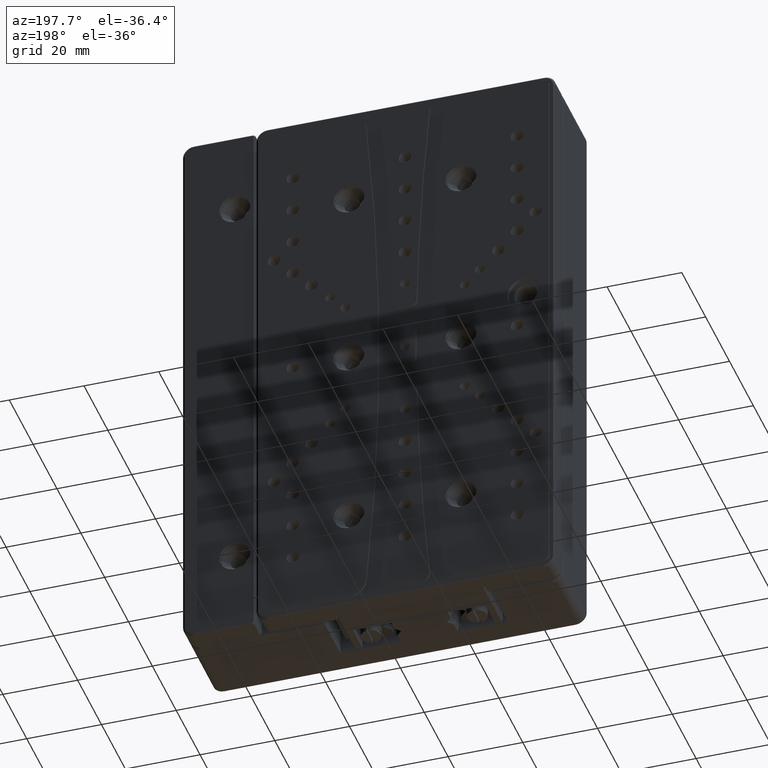
[diagram: clean part render]
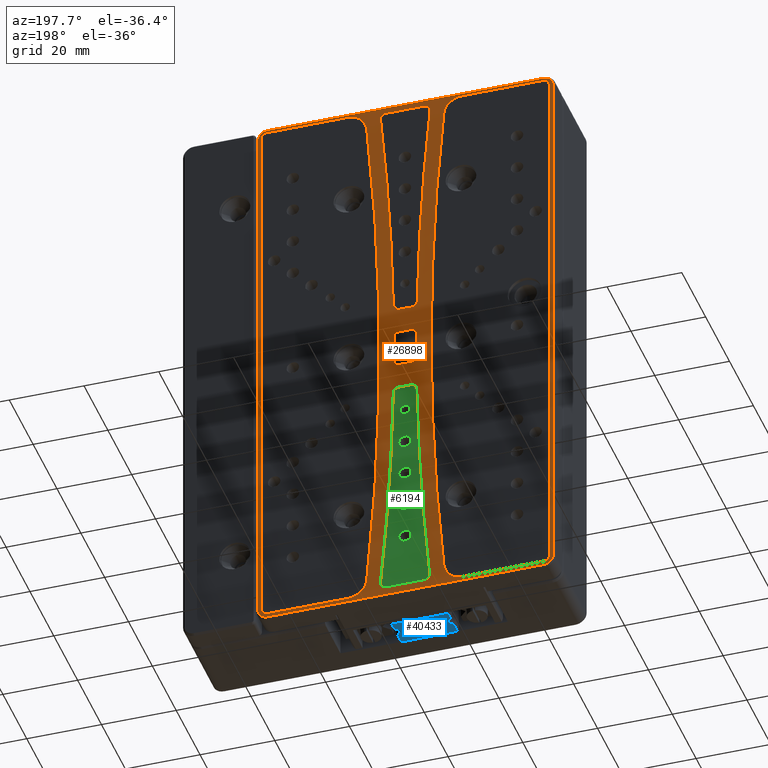
[diagram: same view with three faces highlighted in distinct colors, each labeled with its STEP entity id]
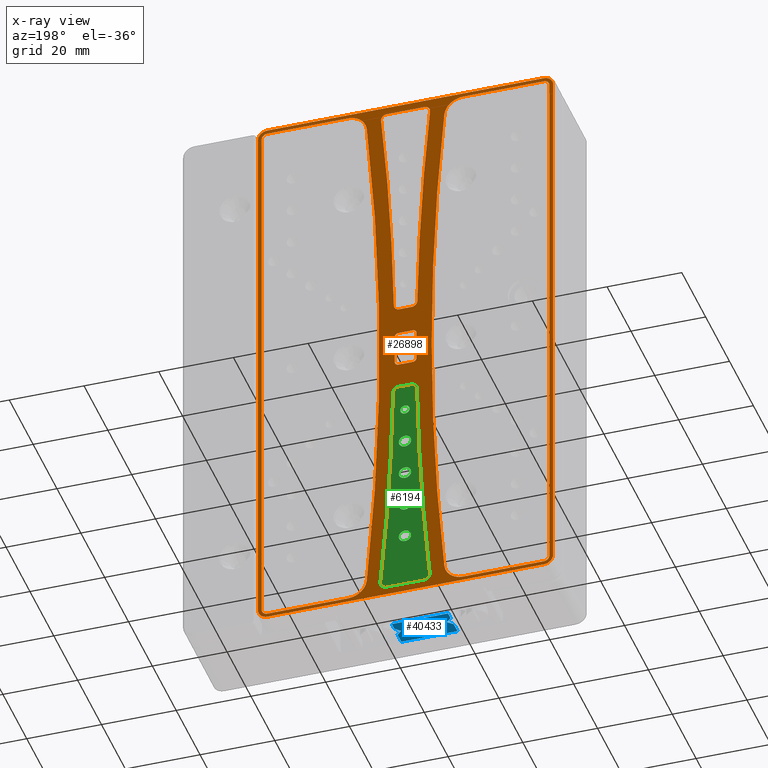
[diagram: x-ray of the same camera — body ghosted, the three highlighted faces saturated]
A machine part, auxiliary view with three faces highlighted in distinct colors.
The next image is the same camera in x-ray (body ghosted, the three faces saturated) — at least one of them is partly hidden behind the body in this view.
Their STEP definitions:

[orange] entity #26898 — the highlighted planar face has unit normal (-0, 1, 0).
#69 = VERTEX_POINT ( 'NONE', #3972 ) ;
#116 = DIRECTION ( 'NONE',  ( 0.000000000000000000, 0.000000000000000000, -1.000000000000000000 ) ) ;
#212 = EDGE_CURVE ( 'NONE', #866, #10616, #19604, .T. ) ;
#351 = DIRECTION ( 'NONE',  ( 0.9998309858899953051, 0.000000000000000000, -0.01838476690741990688 ) ) ;
#396 = CARTESIAN_POINT ( 'NONE',  ( 26.99999999999999645, 7.000000000001000089, 74.50000000000000000 ) ) ;
#564 = CARTESIAN_POINT ( 'NONE',  ( 27.00000000772999442, 7.000000004318000180, 76.99999999568001385 ) ) ;
#637 = ORIENTED_EDGE ( 'NONE', *, *, #14085, .T. ) ;
#648 = VERTEX_POINT ( 'NONE', #26234 ) ;
#674 = CARTESIAN_POINT ( 'NONE',  ( -8.371295755230999447, 7.000000000001000089, 14.00000000000000000 ) ) ;
#866 = VERTEX_POINT ( 'NONE', #44596 ) ;
#895 = CARTESIAN_POINT ( 'NONE',  ( -17.00000000000001421, 7.000000000001000089, 0.000000000000000000 ) ) ;
#965 = CARTESIAN_POINT ( 'NONE',  ( -11.62870424476900055, 7.000000000001000089, -14.00000000000000000 ) ) ;
#1002 = DIRECTION ( 'NONE',  ( 1.000000000000000000, 0.000000000000000000, 0.000000000000000000 ) ) ;
#1052 = DIRECTION ( 'NONE',  ( 1.000000000000000000, 0.000000000000000000, 0.000000000000000000 ) ) ;
#1258 = DIRECTION ( 'NONE',  ( 0.000000000000000000, 0.000000000000000000, 1.000000000000000000 ) ) ;
#1317 = DIRECTION ( 'NONE',  ( -0.000000000000000000, 1.000000000000000000, 0.000000000000000000 ) ) ;
#1392 = DIRECTION ( 'NONE',  ( -0.9953310426837929104, 0.000000000000000000, -0.09652002626394928786 ) ) ;
#1451 = VERTEX_POINT ( 'NONE', #19209 ) ;
#1853 = EDGE_CURVE ( 'NONE', #4032, #4989, #39225, .T. ) ;
#1898 = CARTESIAN_POINT ( 'NONE',  ( -3.451592439681999913, 7.000000000001000089, -73.35521996059999594 ) ) ;
#1922 = LINE ( 'NONE', #27201, #11290 ) ;
#2001 = PLANE ( 'NONE',  #34400 ) ;
#2118 = CARTESIAN_POINT ( 'NONE',  ( -11.62870424476900055, 7.000000000001000089, 12.50000000000000000 ) ) ;
#2132 = EDGE_CURVE ( 'NONE', #25338, #19690, #29527, .T. ) ;
#2137 = CARTESIAN_POINT ( 'NONE',  ( -11.90000000000000036, 7.000000000001000089, 5.000000000000000000 ) ) ;
#2184 = EDGE_CURVE ( 'NONE', #69, #32257, #8926, .T. ) ;
#2290 = ORIENTED_EDGE ( 'NONE', *, *, #17021, .T. ) ;
#2367 = CIRCLE ( 'NONE', #4556, 5.000000000000004441 ) ;
#2418 = CARTESIAN_POINT ( 'NONE',  ( -11.90000000000000036, 7.000000000001000089, -4.000000000000000000 ) ) ;
#2472 = AXIS2_PLACEMENT_3D ( 'NONE', #396, #7506, #17861 ) ;
#2606 = DIRECTION ( 'NONE',  ( 0.9955210055970532546, 0.000000000000000000, 0.09454061251669421129 ) ) ;
#2608 = DIRECTION ( 'NONE',  ( -0.9955210055970588057, 0.000000000000000000, 0.09454061251663607723 ) ) ;
#2639 = LINE ( 'NONE', #13441, #17869 ) ;
#2706 = ORIENTED_EDGE ( 'NONE', *, *, #38000, .T. ) ;
#2810 = CIRCLE ( 'NONE', #29988, 5.000000000000004441 ) ;
#2819 = DIRECTION ( 'NONE',  ( 0.000000000000000000, -1.000000000000000000, 0.000000000000000000 ) ) ;
#2853 = DIRECTION ( 'NONE',  ( -1.000000000000000000, 0.000000000000000000, 0.000000000000000000 ) ) ;
#3025 = CARTESIAN_POINT ( 'NONE',  ( 29.50000000000000000, 7.000000000001000089, -74.50000000000000000 ) ) ;
#3042 = DIRECTION ( 'NONE',  ( 0.000000000000000000, 0.000000000000000000, 1.000000000000000000 ) ) ;
#3064 = EDGE_LOOP ( 'NONE', ( #26033, #11302, #40207, #25550, #7748, #21269, #2290, #33405 ) ) ;
#3067 = EDGE_CURVE ( 'NONE', #12588, #866, #9101, .T. ) ;
#3091 = ORIENTED_EDGE ( 'NONE', *, *, #38563, .T. ) ;
#3189 = CIRCLE ( 'NONE', #2472, 2.499999999999998668 ) ;
#3273 = CARTESIAN_POINT ( 'NONE',  ( -16.54840756031800098, 7.000000000001000089, -73.35521996059999594 ) ) ;
#3324 = CARTESIAN_POINT ( 'NONE',  ( -49.50000000000000000, 7.000000000001000089, 74.50000000000000000 ) ) ;
#3391 = DIRECTION ( 'NONE',  ( 0.000000000000000000, 0.000000000000000000, -1.000000000000000000 ) ) ;
#3462 = CARTESIAN_POINT ( 'NONE',  ( 753.0000000000000000, 7.000000000001000089, 0.000000000000000000 ) ) ;
#3578 = DIRECTION ( 'NONE',  ( -1.000000000000000000, 0.000000000000000000, 0.000000000000000000 ) ) ;
#3703 = VECTOR ( 'NONE', #14578, 1000.000000000000000 ) ;
#3926 = DIRECTION ( 'NONE',  ( 0.000000000000000000, 0.000000000000000000, 1.000000000000000000 ) ) ;
#3972 = CARTESIAN_POINT ( 'NONE',  ( -48.50000000000000000, 7.000000000001000089, -74.50000000000000000 ) ) ;
#4014 = CARTESIAN_POINT ( 'NONE',  ( -773.0000000000000000, 7.000000000001000089, 0.000000000000000000 ) ) ;
#4032 = VERTEX_POINT ( 'NONE', #45245 ) ;
#4118 = AXIS2_PLACEMENT_3D ( 'NONE', #16826, #6246, #44667 ) ;
#4290 = CARTESIAN_POINT ( 'NONE',  ( -47.00000000772999442, 7.000000004318000180, 76.99999999568001385 ) ) ;
#4327 = CARTESIAN_POINT ( 'NONE',  ( 26.99999999999999645, 7.000000000001000089, 76.00000000000000000 ) ) ;
#4342 = CARTESIAN_POINT ( 'NONE',  ( -15.05541099629200019, 7.000000000001000089, -73.50000000000000000 ) ) ;
#4463 = EDGE_CURVE ( 'NONE', #44876, #35645, #15099, .T. ) ;
#4556 = AXIS2_PLACEMENT_3D ( 'NONE', #28777, #18172, #3926 ) ;
#4723 = ORIENTED_EDGE ( 'NONE', *, *, #34387, .T. ) ;
#4854 = CIRCLE ( 'NONE', #4118, 756.0000000000001137 ) ;
#4989 = VERTEX_POINT ( 'NONE', #6163 ) ;
#4996 = DIRECTION ( 'NONE',  ( 0.9998309858899946390, 0.000000000000000000, 0.01838476690744934167 ) ) ;
#5134 = VECTOR ( 'NONE', #30047, 1000.000000000000000 ) ;
#5136 = CIRCLE ( 'NONE', #18360, 1.500000000000001332 ) ;
#5145 = CARTESIAN_POINT ( 'NONE',  ( 28.49999999999999645, 7.000000000001000089, -74.50000000000000000 ) ) ;
#5193 = LINE ( 'NONE', #19228, #22554 ) ;
#5435 = CARTESIAN_POINT ( 'NONE',  ( -15.05541099629200019, 7.000000000001000089, -75.00000000000000000 ) ) ;
#5610 = ORIENTED_EDGE ( 'NONE', *, *, #11812, .T. ) ;
#5621 = CIRCLE ( 'NONE', #37913, 759.9999999999997726 ) ;
#5782 = CARTESIAN_POINT ( 'NONE',  ( -8.371295755230999447, 7.000000000001000089, -12.50000000000000000 ) ) ;
#5794 = DIRECTION ( 'NONE',  ( -0.9998309858899956382, 0.000000000000000000, -0.01838476690739961061 ) ) ;
#5909 = CARTESIAN_POINT ( 'NONE',  ( 26.99999999999999645, 7.000000000001000089, 77.00000000000000000 ) ) ;
#6045 = DIRECTION ( 'NONE',  ( 0.000000000000000000, 0.000000000000000000, 1.000000000000000000 ) ) ;
#6163 = CARTESIAN_POINT ( 'NONE',  ( 5.363724796610000567, 7.000000000001000089, -76.00000000000000000 ) ) ;
#6246 = DIRECTION ( 'NONE',  ( 0.000000000000000000, -1.000000000000000000, 0.000000000000000000 ) ) ;
#6281 = VERTEX_POINT ( 'NONE', #44446 ) ;
#6406 = CARTESIAN_POINT ( 'NONE',  ( -11.90000000000000036, 7.000000000001000089, -5.000000000000000000 ) ) ;
#6485 = EDGE_CURVE ( 'NONE', #43396, #36622, #18746, .T. ) ;
#6615 = LINE ( 'NONE', #34709, #24337 ) ;
#6692 = DIRECTION ( 'NONE',  ( 0.000000000000000000, 0.000000000000000000, 1.000000000000000000 ) ) ;
#6927 = CARTESIAN_POINT ( 'NONE',  ( -49.49999999567000231, 7.000000004333000625, 74.49999999588000321 ) ) ;
#6929 = CARTESIAN_POINT ( 'NONE',  ( 5.363724796610000567, 7.000000000001000089, 76.00000000000000000 ) ) ;
#7010 = EDGE_CURVE ( 'NONE', #39067, #29105, #19837, .T. ) ;
#7054 = DIRECTION ( 'NONE',  ( 0.000000000000000000, -1.000000000000000000, 0.000000000000000000 ) ) ;
#7109 = CARTESIAN_POINT ( 'NONE',  ( -12.90000000000000036, 7.000000000001000089, -4.000000000000000000 ) ) ;
#7139 = DIRECTION ( 'NONE',  ( 0.000000000000000000, 0.000000000000000000, -1.000000000000000000 ) ) ;
#7183 = ORIENTED_EDGE ( 'NONE', *, *, #2184, .T. ) ;
#7249 = VERTEX_POINT ( 'NONE', #5909 ) ;
#7309 = AXIS2_PLACEMENT_3D ( 'NONE', #674, #36313, #42516 ) ;
#7318 = DIRECTION ( 'NONE',  ( -0.9953310426837935765, 0.000000000000000000, 0.09652002626394268203 ) ) ;
#7358 = CARTESIAN_POINT ( 'NONE',  ( 26.99999999999999645, 7.000000000001000089, -74.50000000000000000 ) ) ;
#7506 = DIRECTION ( 'NONE',  ( 0.000000000000000000, -1.000000000000000000, 0.000000000000000000 ) ) ;
#7528 = EDGE_CURVE ( 'NONE', #21405, #39067, #27665, .T. ) ;
#7616 = DIRECTION ( 'NONE',  ( 0.000000000000000000, 0.000000000000000000, -1.000000000000000000 ) ) ;
#7639 = CARTESIAN_POINT ( 'NONE',  ( 5.363724796610000567, 7.000000000001000089, -76.00000000000000000 ) ) ;
#7748 = ORIENTED_EDGE ( 'NONE', *, *, #34941, .T. ) ;
#8146 = DIRECTION ( 'NONE',  ( 0.000000000000000000, -1.000000000000000000, 0.000000000000000000 ) ) ;
#8172 = EDGE_CURVE ( 'NONE', #33821, #19503, #27184, .T. ) ;
#8187 = AXIS2_PLACEMENT_3D ( 'NONE', #35906, #18670, #21888 ) ;
#8356 = VERTEX_POINT ( 'NONE', #20188 ) ;
#8435 = CARTESIAN_POINT ( 'NONE',  ( -773.0000000000000000, 7.000000000001000089, 0.000000000000000000 ) ) ;
#8606 = VERTEX_POINT ( 'NONE', #5435 ) ;
#8649 = CARTESIAN_POINT ( 'NONE',  ( -25.36372479661000057, 7.000000000001000089, 71.00000000000000000 ) ) ;
#8658 = FACE_BOUND ( 'NONE', #23083, .T. ) ;
#8789 = DIRECTION ( 'NONE',  ( -1.000000000000000000, 0.000000000000000000, 0.000000000000000000 ) ) ;
#8798 = DIRECTION ( 'NONE',  ( 0.000000000000000000, -1.000000000000000000, 0.000000000000000000 ) ) ;
#8893 = DIRECTION ( 'NONE',  ( 1.000000000000000000, 0.000000000000000000, 0.000000000000000000 ) ) ;
#8926 = CIRCLE ( 'NONE', #8187, 1.500000000000001332 ) ;
#8978 = VECTOR ( 'NONE', #38230, 1000.000000000000000 ) ;
#8997 = EDGE_CURVE ( 'NONE', #19690, #18852, #25875, .T. ) ;
#9101 = CIRCLE ( 'NONE', #23809, 5.000000000000000000 ) ;
#9224 = CARTESIAN_POINT ( 'NONE',  ( -6.871549276396001105, 7.000000000001000089, -13.97242284964000092 ) ) ;
#9512 = DIRECTION ( 'NONE',  ( 0.000000000000000000, -1.000000000000000000, 0.000000000000000000 ) ) ;
#9521 = VERTEX_POINT ( 'NONE', #17074 ) ;
#9959 = CARTESIAN_POINT ( 'NONE',  ( 29.49999999566999520, 7.000000004333000625, 74.49999999588000321 ) ) ;
#10051 = LINE ( 'NONE', #28210, #41870 ) ;
#10131 = DIRECTION ( 'NONE',  ( 0.000000000000000000, 0.000000000000000000, 1.000000000000000000 ) ) ;
#10171 = CARTESIAN_POINT ( 'NONE',  ( -4.944589003707999808, 7.000000000001000089, -75.00000000000000000 ) ) ;
#10251 = ORIENTED_EDGE ( 'NONE', *, *, #4463, .T. ) ;
#10288 = ORIENTED_EDGE ( 'NONE', *, *, #12565, .T. ) ;
#10616 = VERTEX_POINT ( 'NONE', #41286 ) ;
#10839 = EDGE_CURVE ( 'NONE', #7249, #18214, #39648, .T. ) ;
#11180 = CARTESIAN_POINT ( 'NONE',  ( -13.12845072360399890, 7.000000000001000089, -13.97242284964000092 ) ) ;
#11290 = VECTOR ( 'NONE', #16388, 1000.000000000000000 ) ;
#11291 = DIRECTION ( 'NONE',  ( 0.000000000000000000, -1.000000000000000000, 0.000000000000000000 ) ) ;
#11302 = ORIENTED_EDGE ( 'NONE', *, *, #2132, .T. ) ;
#11418 = DIRECTION ( 'NONE',  ( 0.000000000000000000, 0.000000000000000000, 1.000000000000000000 ) ) ;
#11693 = EDGE_CURVE ( 'NONE', #35144, #43706, #15863, .T. ) ;
#11812 = EDGE_CURVE ( 'NONE', #43029, #69, #22698, .T. ) ;
#11961 = EDGE_CURVE ( 'NONE', #40881, #21739, #43017, .T. ) ;
#12015 = ORIENTED_EDGE ( 'NONE', *, *, #31098, .T. ) ;
#12484 = CARTESIAN_POINT ( 'NONE',  ( -25.36372479661000057, 7.000000000001000089, -76.00000000000000000 ) ) ;
#12495 = EDGE_CURVE ( 'NONE', #4989, #25338, #14538, .T. ) ;
#12565 = EDGE_CURVE ( 'NONE', #648, #43396, #29508, .T. ) ;
#12568 = CARTESIAN_POINT ( 'NONE',  ( -10.00000000000000000, 7.000000000001000089, 0.000000000000000000 ) ) ;
#12588 = VERTEX_POINT ( 'NONE', #43967 ) ;
#12687 = VERTEX_POINT ( 'NONE', #2118 ) ;
#12854 = ORIENTED_EDGE ( 'NONE', *, *, #29078, .F. ) ;
#12957 = EDGE_CURVE ( 'NONE', #24861, #648, #35043, .T. ) ;
#13441 = CARTESIAN_POINT ( 'NONE',  ( 26.99999999999999645, 7.000000000001000089, 76.00000000000000000 ) ) ;
#13498 = ORIENTED_EDGE ( 'NONE', *, *, #18623, .T. ) ;
#13580 = CARTESIAN_POINT ( 'NONE',  ( -15.05541099629200019, 7.000000000001000089, 73.50000000000000000 ) ) ;
#13725 = VECTOR ( 'NONE', #1002, 1000.000000000000000 ) ;
#13833 = CIRCLE ( 'NONE', #18994, 759.9999999999997726 ) ;
#14085 = EDGE_CURVE ( 'NONE', #35645, #12687, #21203, .T. ) ;
#14271 = CARTESIAN_POINT ( 'NONE',  ( -11.62870424476900055, 7.000000000001000089, -12.50000000000000000 ) ) ;
#14317 = DIRECTION ( 'NONE',  ( 0.000000000000000000, 0.000000000000000000, 1.000000000000000000 ) ) ;
#14333 = ORIENTED_EDGE ( 'NONE', *, *, #7528, .F. ) ;
#14372 = VERTEX_POINT ( 'NONE', #3025 ) ;
#14399 = EDGE_CURVE ( 'NONE', #8356, #14803, #30785, .T. ) ;
#14503 = DIRECTION ( 'NONE',  ( 0.000000000000000000, -1.000000000000000000, 0.000000000000000000 ) ) ;
#14518 = CARTESIAN_POINT ( 'NONE',  ( -4.944589003707999808, 7.000000000001000089, 73.50000000000000000 ) ) ;
#14538 = LINE ( 'NONE', #7639, #13725 ) ;
#14578 = DIRECTION ( 'NONE',  ( -1.000000000000000000, 0.000000000000000000, 0.000000000000000000 ) ) ;
#14803 = VERTEX_POINT ( 'NONE', #42499 ) ;
#14824 = VECTOR ( 'NONE', #8789, 1000.000000000000000 ) ;
#14834 = CARTESIAN_POINT ( 'NONE',  ( -8.099999999999999645, 7.000000000001000089, 4.000000000000000000 ) ) ;
#14991 = DIRECTION ( 'NONE',  ( 0.000000000000000000, -1.000000000000000000, 0.000000000000000000 ) ) ;
#15099 = CIRCLE ( 'NONE', #40799, 760.0000000000001137 ) ;
#15110 = AXIS2_PLACEMENT_3D ( 'NONE', #8435, #22476, #28931 ) ;
#15188 = ORIENTED_EDGE ( 'NONE', *, *, #31832, .T. ) ;
#15600 = DIRECTION ( 'NONE',  ( 0.000000000000000000, -1.000000000000000000, 0.000000000000000000 ) ) ;
#15863 = CIRCLE ( 'NONE', #15110, 756.0000000000001137 ) ;
#15949 = DIRECTION ( 'NONE',  ( 0.000000000000000000, -1.000000000000000000, 0.000000000000000000 ) ) ;
#16370 = CARTESIAN_POINT ( 'NONE',  ( -25.36372479661000057, 7.000000000001000089, 76.00000000000000000 ) ) ;
#16388 = DIRECTION ( 'NONE',  ( 1.000000000000000000, 0.000000000000000000, 0.000000000000000000 ) ) ;
#16433 = DIRECTION ( 'NONE',  ( -1.000000000000000000, 0.000000000000000000, 0.000000000000000000 ) ) ;
#16501 = DIRECTION ( 'NONE',  ( 1.000000000000000000, 0.000000000000000000, 0.000000000000000000 ) ) ;
#16523 = ORIENTED_EDGE ( 'NONE', *, *, #7010, .F. ) ;
#16625 = LINE ( 'NONE', #30690, #8978 ) ;
#16660 = CARTESIAN_POINT ( 'NONE',  ( -47.00000000000000000, 7.000000000001000089, -77.00000000000000000 ) ) ;
#16690 = CARTESIAN_POINT ( 'NONE',  ( -48.50000000000000000, 7.000000000001000089, 74.50000000000000000 ) ) ;
#16826 = CARTESIAN_POINT ( 'NONE',  ( -773.0000000000000000, 7.000000000001000089, 0.000000000000000000 ) ) ;
#17021 = EDGE_CURVE ( 'NONE', #1451, #4032, #42131, .T. ) ;
#17060 = CIRCLE ( 'NONE', #26647, 760.0000000000001137 ) ;
#17074 = CARTESIAN_POINT ( 'NONE',  ( -15.05541099629200019, 7.000000000001000089, 75.00000000000000000 ) ) ;
#17097 = ORIENTED_EDGE ( 'NONE', *, *, #8172, .T. ) ;
#17463 = CARTESIAN_POINT ( 'NONE',  ( -7.100000000000000533, 7.000000000001000089, 4.000000000000000000 ) ) ;
#17580 = CARTESIAN_POINT ( 'NONE',  ( 28.49999999999999645, 7.000000000001000089, -74.50000000000000000 ) ) ;
#17760 = AXIS2_PLACEMENT_3D ( 'NONE', #25390, #31825, #14317 ) ;
#17813 = CARTESIAN_POINT ( 'NONE',  ( -12.90000000000000036, 7.000000000001000089, 4.000000000000000000 ) ) ;
#17861 = DIRECTION ( 'NONE',  ( 1.000000000000000000, 0.000000000000000000, 0.000000000000000000 ) ) ;
#17869 = VECTOR ( 'NONE', #2853, 1000.000000000000000 ) ;
#18048 = EDGE_LOOP ( 'NONE', ( #14333, #37855, #35434, #34314, #33979, #12854, #24271, #16523 ) ) ;
#18142 = CARTESIAN_POINT ( 'NONE',  ( -49.50000000000000000, 7.000000000001000089, -74.50000000000000000 ) ) ;
#18172 = DIRECTION ( 'NONE',  ( 0.000000000000000000, -1.000000000000000000, 0.000000000000000000 ) ) ;
#18214 = VERTEX_POINT ( 'NONE', #4290 ) ;
#18360 = AXIS2_PLACEMENT_3D ( 'NONE', #13580, #24630, #10131 ) ;
#18623 = EDGE_CURVE ( 'NONE', #32256, #26305, #32313, .T. ) ;
#18670 = DIRECTION ( 'NONE',  ( 0.000000000000000000, -1.000000000000000000, 0.000000000000000000 ) ) ;
#18746 = CIRCLE ( 'NONE', #43002, 1.499999999999999556 ) ;
#18852 = VERTEX_POINT ( 'NONE', #20473 ) ;
#18975 = AXIS2_PLACEMENT_3D ( 'NONE', #29754, #8798, #5794 ) ;
#18994 = AXIS2_PLACEMENT_3D ( 'NONE', #28404, #38974, #351 ) ;
#18996 = CARTESIAN_POINT ( 'NONE',  ( -11.90000000000000036, 7.000000000001000089, -5.000000000000000000 ) ) ;
#19209 = CARTESIAN_POINT ( 'NONE',  ( 0.3861197686199999701, 7.000000000001000089, 71.47270306257999550 ) ) ;
#19228 = CARTESIAN_POINT ( 'NONE',  ( -8.099999999999999645, 7.000000000001000089, 5.000000000000000000 ) ) ;
#19469 = LINE ( 'NONE', #18996, #5134 ) ;
#19503 = VERTEX_POINT ( 'NONE', #30062 ) ;
#19604 = LINE ( 'NONE', #16370, #14824 ) ;
#19640 = DIRECTION ( 'NONE',  ( 0.000000000000000000, -1.000000000000000000, 0.000000000000000000 ) ) ;
#19690 = VERTEX_POINT ( 'NONE', #17580 ) ;
#19837 = CIRCLE ( 'NONE', #42612, 2.500000000000002220 ) ;
#19943 = AXIS2_PLACEMENT_3D ( 'NONE', #43646, #33311, #40191 ) ;
#20188 = CARTESIAN_POINT ( 'NONE',  ( -8.099999999999999645, 7.000000000001000089, -5.000000000000000000 ) ) ;
#20271 = AXIS2_PLACEMENT_3D ( 'NONE', #34553, #38447, #3042 ) ;
#20463 = AXIS2_PLACEMENT_3D ( 'NONE', #37340, #9512, #27010 ) ;
#20473 = CARTESIAN_POINT ( 'NONE',  ( 28.49999999999999645, 7.000000000001000089, 74.50000000000000000 ) ) ;
#20502 = ORIENTED_EDGE ( 'NONE', *, *, #33691, .T. ) ;
#20539 = EDGE_CURVE ( 'NONE', #19503, #33818, #5621, .T. ) ;
#20642 = AXIS2_PLACEMENT_3D ( 'NONE', #39878, #15949, #6045 ) ;
#20668 = CIRCLE ( 'NONE', #19943, 1.500000000000001332 ) ;
#20804 = DIRECTION ( 'NONE',  ( -1.000000000000000000, 0.000000000000000000, 0.000000000000000000 ) ) ;
#20884 = ORIENTED_EDGE ( 'NONE', *, *, #32163, .T. ) ;
#20911 = ORIENTED_EDGE ( 'NONE', *, *, #20539, .T. ) ;
#20922 = ORIENTED_EDGE ( 'NONE', *, *, #43881, .T. ) ;
#21192 = DIRECTION ( 'NONE',  ( 0.000000000000000000, 0.000000000000000000, -1.000000000000000000 ) ) ;
#21203 = CIRCLE ( 'NONE', #18975, 1.500000000000000444 ) ;
#21223 = CIRCLE ( 'NONE', #20463, 1.500000000000001332 ) ;
#21269 = ORIENTED_EDGE ( 'NONE', *, *, #43280, .T. ) ;
#21405 = VERTEX_POINT ( 'NONE', #3324 ) ;
#21472 = CARTESIAN_POINT ( 'NONE',  ( -8.371295755230999447, 7.000000000001000089, 12.50000000000000000 ) ) ;
#21519 = CIRCLE ( 'NONE', #23758, 1.500000000000001998 ) ;
#21525 = ORIENTED_EDGE ( 'NONE', *, *, #6485, .T. ) ;
#21551 = ORIENTED_EDGE ( 'NONE', *, *, #26681, .T. ) ;
#21739 = VERTEX_POINT ( 'NONE', #23099 ) ;
#21888 = DIRECTION ( 'NONE',  ( -1.000000000000000000, 0.000000000000000000, 0.000000000000000000 ) ) ;
#22297 = CARTESIAN_POINT ( 'NONE',  ( 26.99999999999999645, 7.000000000001000089, -76.00000000000000000 ) ) ;
#22473 = FACE_BOUND ( 'NONE', #3064, .T. ) ;
#22476 = DIRECTION ( 'NONE',  ( 0.000000000000000000, -1.000000000000000000, 0.000000000000000000 ) ) ;
#22554 = VECTOR ( 'NONE', #20804, 1000.000000000000000 ) ;
#22555 = EDGE_CURVE ( 'NONE', #29600, #8356, #19469, .T. ) ;
#22698 = LINE ( 'NONE', #16690, #29837 ) ;
#22707 = CARTESIAN_POINT ( 'NONE',  ( -8.371295755230999447, 7.000000000001000089, -14.00000000000000000 ) ) ;
#23083 = EDGE_LOOP ( 'NONE', ( #34203, #15188, #5610, #7183, #42804, #21551, #29524, #45106, #36725 ) ) ;
#23099 = CARTESIAN_POINT ( 'NONE',  ( -8.099999999999999645, 7.000000000001000089, 5.000000000000000000 ) ) ;
#23318 = DIRECTION ( 'NONE',  ( -0.9955210055970559191, 0.000000000000000000, -0.09454061251666645571 ) ) ;
#23682 = EDGE_LOOP ( 'NONE', ( #637, #27269, #17097, #20911, #20884, #39301, #38594, #10251 ) ) ;
#23758 = AXIS2_PLACEMENT_3D ( 'NONE', #4342, #28288, #7318 ) ;
#23809 = AXIS2_PLACEMENT_3D ( 'NONE', #8649, #2819, #2606 ) ;
#24033 = CARTESIAN_POINT ( 'NONE',  ( 27.00000000772999442, 7.000000004318000180, -76.99999999568001385 ) ) ;
#24219 = ORIENTED_EDGE ( 'NONE', *, *, #37209, .T. ) ;
#24250 = EDGE_CURVE ( 'NONE', #32257, #35365, #16625, .T. ) ;
#24271 = ORIENTED_EDGE ( 'NONE', *, *, #42240, .F. ) ;
#24337 = VECTOR ( 'NONE', #45259, 1000.000000000000000 ) ;
#24420 = DIRECTION ( 'NONE',  ( 0.000000000000000000, 1.000000000000000000, 0.000000000000000000 ) ) ;
#24630 = DIRECTION ( 'NONE',  ( 0.000000000000000000, -1.000000000000000000, 0.000000000000000000 ) ) ;
#24646 = DIRECTION ( 'NONE',  ( -0.9998309858899953051, 0.000000000000000000, 0.01838476690741990688 ) ) ;
#24861 = VERTEX_POINT ( 'NONE', #9224 ) ;
#25171 = EDGE_CURVE ( 'NONE', #32030, #8606, #21519, .T. ) ;
#25182 = CARTESIAN_POINT ( 'NONE',  ( -20.38611976862000219, 7.000000000001000089, -71.47270306257999550 ) ) ;
#25338 = VERTEX_POINT ( 'NONE', #22297 ) ;
#25342 = CARTESIAN_POINT ( 'NONE',  ( -8.099999999999999645, 7.000000000001000089, -4.000000000000000000 ) ) ;
#25365 = DIRECTION ( 'NONE',  ( 0.9953310426837990166, 0.000000000000000000, -0.09652002626388730966 ) ) ;
#25390 = CARTESIAN_POINT ( 'NONE',  ( -47.00000000000000000, 7.000000000001000089, 74.50000000000000000 ) ) ;
#25550 = ORIENTED_EDGE ( 'NONE', *, *, #27526, .T. ) ;
#25600 = EDGE_CURVE ( 'NONE', #32101, #7249, #3189, .T. ) ;
#25666 = CARTESIAN_POINT ( 'NONE',  ( -48.50000000000000000, 7.000000000001000089, 74.50000000000000000 ) ) ;
#25668 = VECTOR ( 'NONE', #21192, 1000.000000000000000 ) ;
#25875 = LINE ( 'NONE', #5145, #37079 ) ;
#25879 = VECTOR ( 'NONE', #16501, 1000.000000000000000 ) ;
#25959 = DIRECTION ( 'NONE',  ( 0.000000000000000000, -1.000000000000000000, 0.000000000000000000 ) ) ;
#26033 = ORIENTED_EDGE ( 'NONE', *, *, #12495, .T. ) ;
#26234 = CARTESIAN_POINT ( 'NONE',  ( -8.371295755230999447, 7.000000000001000089, -12.50000000000000000 ) ) ;
#26295 = EDGE_CURVE ( 'NONE', #9521, #44876, #5136, .T. ) ;
#26305 = VERTEX_POINT ( 'NONE', #7109 ) ;
#26647 = AXIS2_PLACEMENT_3D ( 'NONE', #40026, #32468, #1392 ) ;
#26681 = EDGE_CURVE ( 'NONE', #35365, #35144, #2810, .T. ) ;
#26898 = ADVANCED_FACE ( 'NONE', ( #22473, #40631, #43625, #40168, #8658, #40393 ), #2001, .T. ) ;
#27010 = DIRECTION ( 'NONE',  ( 1.000000000000000000, 0.000000000000000000, 0.000000000000000000 ) ) ;
#27110 = CARTESIAN_POINT ( 'NONE',  ( -25.36372479661000057, 7.000000000001000089, -71.00000000000000000 ) ) ;
#27122 = EDGE_CURVE ( 'NONE', #36622, #32030, #13833, .T. ) ;
#27184 = CIRCLE ( 'NONE', #7309, 1.499999999999999556 ) ;
#27201 = CARTESIAN_POINT ( 'NONE',  ( -11.62870424476900055, 7.000000000001000089, 12.50000000000000000 ) ) ;
#27249 = DIRECTION ( 'NONE',  ( 0.000000000000000000, -1.000000000000000000, 0.000000000000000000 ) ) ;
#27269 = ORIENTED_EDGE ( 'NONE', *, *, #35415, .T. ) ;
#27292 = CIRCLE ( 'NONE', #20642, 1.500000000000001332 ) ;
#27526 = EDGE_CURVE ( 'NONE', #18852, #36065, #21223, .T. ) ;
#27665 = LINE ( 'NONE', #6927, #25668 ) ;
#28179 = DIRECTION ( 'NONE',  ( 0.9953310426837929104, 0.000000000000000000, 0.09652002626394928786 ) ) ;
#28210 = CARTESIAN_POINT ( 'NONE',  ( -4.944589003707999808, 7.000000000001000089, 75.00000000000000000 ) ) ;
#28288 = DIRECTION ( 'NONE',  ( 0.000000000000000000, -1.000000000000000000, 0.000000000000000000 ) ) ;
#28404 = CARTESIAN_POINT ( 'NONE',  ( -773.0000000000000000, 7.000000000001000089, 0.000000000000000000 ) ) ;
#28663 = EDGE_CURVE ( 'NONE', #6281, #9521, #10051, .T. ) ;
#28761 = AXIS2_PLACEMENT_3D ( 'NONE', #29034, #14991, #7616 ) ;
#28777 = CARTESIAN_POINT ( 'NONE',  ( 5.363724796610000567, 7.000000000001000089, 71.00000000000000000 ) ) ;
#28931 = DIRECTION ( 'NONE',  ( 0.9955210055970588057, 0.000000000000000000, -0.09454061251663607723 ) ) ;
#29034 = CARTESIAN_POINT ( 'NONE',  ( 26.99999999999999645, 7.000000000001000089, -74.50000000000000000 ) ) ;
#29078 = EDGE_CURVE ( 'NONE', #38005, #14372, #32414, .T. ) ;
#29105 = VERTEX_POINT ( 'NONE', #16660 ) ;
#29136 = CARTESIAN_POINT ( 'NONE',  ( 29.49999999566999520, 7.000000004333000625, -74.49999999588000321 ) ) ;
#29508 = LINE ( 'NONE', #5782, #40874 ) ;
#29524 = ORIENTED_EDGE ( 'NONE', *, *, #11693, .T. ) ;
#29527 = CIRCLE ( 'NONE', #28761, 1.500000000000001332 ) ;
#29587 = ORIENTED_EDGE ( 'NONE', *, *, #22555, .T. ) ;
#29600 = VERTEX_POINT ( 'NONE', #6406 ) ;
#29754 = CARTESIAN_POINT ( 'NONE',  ( -11.62870424476900055, 7.000000000001000089, 14.00000000000000000 ) ) ;
#29773 = CARTESIAN_POINT ( 'NONE',  ( 5.363724796610000567, 7.000000000001000089, -71.00000000000000000 ) ) ;
#29811 = VECTOR ( 'NONE', #116, 1000.000000000000000 ) ;
#29837 = VECTOR ( 'NONE', #36715, 1000.000000000000000 ) ;
#29988 = AXIS2_PLACEMENT_3D ( 'NONE', #27110, #7054, #3391 ) ;
#30047 = DIRECTION ( 'NONE',  ( 1.000000000000000000, 0.000000000000000000, 0.000000000000000000 ) ) ;
#30062 = CARTESIAN_POINT ( 'NONE',  ( -6.871549276396001105, 7.000000000001000089, 13.97242284964000092 ) ) ;
#30220 = DIRECTION ( 'NONE',  ( 0.000000000000000000, -1.000000000000000000, 0.000000000000000000 ) ) ;
#30690 = CARTESIAN_POINT ( 'NONE',  ( -47.00000000000000000, 7.000000000001000089, -76.00000000000000000 ) ) ;
#30780 = VERTEX_POINT ( 'NONE', #10171 ) ;
#30785 = CIRCLE ( 'NONE', #38823, 1.000000000000000000 ) ;
#31098 = EDGE_CURVE ( 'NONE', #8606, #30780, #37213, .T. ) ;
#31130 = LINE ( 'NONE', #37773, #34994 ) ;
#31825 = DIRECTION ( 'NONE',  ( 0.000000000000000000, -1.000000000000000000, 0.000000000000000000 ) ) ;
#31832 = EDGE_CURVE ( 'NONE', #10616, #43029, #27292, .T. ) ;
#32030 = VERTEX_POINT ( 'NONE', #3273 ) ;
#32101 = VERTEX_POINT ( 'NONE', #9959 ) ;
#32163 = EDGE_CURVE ( 'NONE', #33818, #6281, #42673, .T. ) ;
#32256 = VERTEX_POINT ( 'NONE', #40269 ) ;
#32257 = VERTEX_POINT ( 'NONE', #36371 ) ;
#32262 = ORIENTED_EDGE ( 'NONE', *, *, #12957, .T. ) ;
#32311 = DIRECTION ( 'NONE',  ( 0.000000000000000000, 1.000000000000000000, 0.000000000000000000 ) ) ;
#32313 = LINE ( 'NONE', #17813, #29811 ) ;
#32414 = CIRCLE ( 'NONE', #37507, 2.500000000000002220 ) ;
#32468 = DIRECTION ( 'NONE',  ( 0.000000000000000000, 1.000000000000000000, 0.000000000000000000 ) ) ;
#32510 = ORIENTED_EDGE ( 'NONE', *, *, #25171, .T. ) ;
#32693 = DIRECTION ( 'NONE',  ( 0.000000000000000000, 0.000000000000000000, -1.000000000000000000 ) ) ;
#33311 = DIRECTION ( 'NONE',  ( 0.000000000000000000, -1.000000000000000000, 0.000000000000000000 ) ) ;
#33405 = ORIENTED_EDGE ( 'NONE', *, *, #1853, .T. ) ;
#33691 = EDGE_CURVE ( 'NONE', #26305, #29600, #41217, .T. ) ;
#33818 = VERTEX_POINT ( 'NONE', #41707 ) ;
#33821 = VERTEX_POINT ( 'NONE', #21472 ) ;
#33979 = ORIENTED_EDGE ( 'NONE', *, *, #37786, .F. ) ;
#34203 = ORIENTED_EDGE ( 'NONE', *, *, #212, .T. ) ;
#34314 = ORIENTED_EDGE ( 'NONE', *, *, #25600, .F. ) ;
#34387 = EDGE_CURVE ( 'NONE', #40639, #24861, #17060, .T. ) ;
#34400 = AXIS2_PLACEMENT_3D ( 'NONE', #12568, #1317, #8893 ) ;
#34553 = CARTESIAN_POINT ( 'NONE',  ( -11.90000000000000036, 7.000000000001000089, 4.000000000000000000 ) ) ;
#34589 = ORIENTED_EDGE ( 'NONE', *, *, #14399, .T. ) ;
#34709 = CARTESIAN_POINT ( 'NONE',  ( -47.00000000772999442, 7.000000004318000180, -76.99999999568001385 ) ) ;
#34766 = EDGE_LOOP ( 'NONE', ( #32510, #12015, #20922, #4723, #32262, #10288, #21525, #39945 ) ) ;
#34941 = EDGE_CURVE ( 'NONE', #36065, #38535, #2639, .T. ) ;
#34994 = VECTOR ( 'NONE', #6692, 1000.000000000000000 ) ;
#35043 = CIRCLE ( 'NONE', #38704, 1.500000000000000222 ) ;
#35144 = VERTEX_POINT ( 'NONE', #25182 ) ;
#35331 = VERTEX_POINT ( 'NONE', #2137 ) ;
#35365 = VERTEX_POINT ( 'NONE', #12484 ) ;
#35415 = EDGE_CURVE ( 'NONE', #12687, #33821, #1922, .T. ) ;
#35434 = ORIENTED_EDGE ( 'NONE', *, *, #10839, .F. ) ;
#35452 = DIRECTION ( 'NONE',  ( 0.000000000000000000, 0.000000000000000000, 1.000000000000000000 ) ) ;
#35645 = VERTEX_POINT ( 'NONE', #36132 ) ;
#35906 = CARTESIAN_POINT ( 'NONE',  ( -47.00000000000000000, 7.000000000001000089, -74.50000000000000000 ) ) ;
#35910 = DIRECTION ( 'NONE',  ( 0.000000000000000000, -1.000000000000000000, 0.000000000000000000 ) ) ;
#36065 = VERTEX_POINT ( 'NONE', #4327 ) ;
#36132 = CARTESIAN_POINT ( 'NONE',  ( -13.12845072360399890, 7.000000000001000089, 13.97242284964000092 ) ) ;
#36313 = DIRECTION ( 'NONE',  ( 0.000000000000000000, -1.000000000000000000, 0.000000000000000000 ) ) ;
#36371 = CARTESIAN_POINT ( 'NONE',  ( -47.00000000000000000, 7.000000000001000089, -76.00000000000000000 ) ) ;
#36622 = VERTEX_POINT ( 'NONE', #11180 ) ;
#36715 = DIRECTION ( 'NONE',  ( 0.000000000000000000, 0.000000000000000000, -1.000000000000000000 ) ) ;
#36725 = ORIENTED_EDGE ( 'NONE', *, *, #3067, .T. ) ;
#37079 = VECTOR ( 'NONE', #1258, 1000.000000000000000 ) ;
#37204 = CARTESIAN_POINT ( 'NONE',  ( -47.00000000000000000, 7.000000000001000089, -74.50000000000000000 ) ) ;
#37209 = EDGE_CURVE ( 'NONE', #14803, #40881, #31130, .T. ) ;
#37213 = LINE ( 'NONE', #44783, #25879 ) ;
#37249 = EDGE_CURVE ( 'NONE', #43706, #12588, #4854, .T. ) ;
#37270 = ORIENTED_EDGE ( 'NONE', *, *, #11961, .T. ) ;
#37340 = CARTESIAN_POINT ( 'NONE',  ( 26.99999999999999645, 7.000000000001000089, 74.50000000000000000 ) ) ;
#37507 = AXIS2_PLACEMENT_3D ( 'NONE', #7358, #14503, #7139 ) ;
#37773 = CARTESIAN_POINT ( 'NONE',  ( -7.100000000000000533, 7.000000000001000089, -4.000000000000000000 ) ) ;
#37786 = EDGE_CURVE ( 'NONE', #14372, #32101, #43370, .T. ) ;
#37855 = ORIENTED_EDGE ( 'NONE', *, *, #44240, .F. ) ;
#37913 = AXIS2_PLACEMENT_3D ( 'NONE', #3462, #24420, #24646 ) ;
#38000 = EDGE_CURVE ( 'NONE', #21739, #35331, #5193, .T. ) ;
#38005 = VERTEX_POINT ( 'NONE', #24033 ) ;
#38230 = DIRECTION ( 'NONE',  ( 1.000000000000000000, 0.000000000000000000, 0.000000000000000000 ) ) ;
#38447 = DIRECTION ( 'NONE',  ( 0.000000000000000000, -1.000000000000000000, 0.000000000000000000 ) ) ;
#38535 = VERTEX_POINT ( 'NONE', #6929 ) ;
#38563 = EDGE_CURVE ( 'NONE', #35331, #32256, #42299, .T. ) ;
#38594 = ORIENTED_EDGE ( 'NONE', *, *, #26295, .T. ) ;
#38704 = AXIS2_PLACEMENT_3D ( 'NONE', #22707, #25959, #4996 ) ;
#38823 = AXIS2_PLACEMENT_3D ( 'NONE', #25342, #11291, #32693 ) ;
#38974 = DIRECTION ( 'NONE',  ( 0.000000000000000000, 1.000000000000000000, 0.000000000000000000 ) ) ;
#39052 = CIRCLE ( 'NONE', #17760, 2.500000000000002220 ) ;
#39067 = VERTEX_POINT ( 'NONE', #18142 ) ;
#39215 = AXIS2_PLACEMENT_3D ( 'NONE', #41227, #19640, #2608 ) ;
#39225 = CIRCLE ( 'NONE', #45092, 5.000000000000000000 ) ;
#39301 = ORIENTED_EDGE ( 'NONE', *, *, #28663, .T. ) ;
#39648 = LINE ( 'NONE', #564, #3703 ) ;
#39847 = DIRECTION ( 'NONE',  ( -1.000000000000000000, 0.000000000000000000, 0.000000000000000000 ) ) ;
#39878 = CARTESIAN_POINT ( 'NONE',  ( -47.00000000000000000, 7.000000000001000089, 74.50000000000000000 ) ) ;
#39945 = ORIENTED_EDGE ( 'NONE', *, *, #27122, .T. ) ;
#40026 = CARTESIAN_POINT ( 'NONE',  ( 753.0000000000000000, 7.000000000001000089, 0.000000000000000000 ) ) ;
#40168 = FACE_BOUND ( 'NONE', #42265, .T. ) ;
#40191 = DIRECTION ( 'NONE',  ( 0.000000000000000000, 0.000000000000000000, -1.000000000000000000 ) ) ;
#40207 = ORIENTED_EDGE ( 'NONE', *, *, #8997, .T. ) ;
#40269 = CARTESIAN_POINT ( 'NONE',  ( -12.90000000000000036, 7.000000000001000089, 4.000000000000000000 ) ) ;
#40393 = FACE_OUTER_BOUND ( 'NONE', #18048, .T. ) ;
#40631 = FACE_BOUND ( 'NONE', #23682, .T. ) ;
#40639 = VERTEX_POINT ( 'NONE', #1898 ) ;
#40799 = AXIS2_PLACEMENT_3D ( 'NONE', #4014, #32311, #28179 ) ;
#40811 = AXIS2_PLACEMENT_3D ( 'NONE', #14834, #8146, #1052 ) ;
#40874 = VECTOR ( 'NONE', #39847, 1000.000000000000000 ) ;
#40881 = VERTEX_POINT ( 'NONE', #17463 ) ;
#41217 = CIRCLE ( 'NONE', #43498, 1.000000000000000888 ) ;
#41227 = CARTESIAN_POINT ( 'NONE',  ( 753.0000000000000000, 7.000000000001000089, 0.000000000000000000 ) ) ;
#41286 = CARTESIAN_POINT ( 'NONE',  ( -47.00000000000000000, 7.000000000001000089, 76.00000000000000000 ) ) ;
#41707 = CARTESIAN_POINT ( 'NONE',  ( -3.451592439681999913, 7.000000000001000089, 73.35521996059999594 ) ) ;
#41870 = VECTOR ( 'NONE', #3578, 1000.000000000000000 ) ;
#42131 = CIRCLE ( 'NONE', #39215, 756.0000000000001137 ) ;
#42240 = EDGE_CURVE ( 'NONE', #29105, #38005, #6615, .T. ) ;
#42265 = EDGE_LOOP ( 'NONE', ( #34589, #24219, #37270, #2706, #3091, #13498, #20502, #29587 ) ) ;
#42299 = CIRCLE ( 'NONE', #20271, 1.000000000000000000 ) ;
#42344 = DIRECTION ( 'NONE',  ( 0.000000000000000000, -1.000000000000000000, 0.000000000000000000 ) ) ;
#42499 = CARTESIAN_POINT ( 'NONE',  ( -7.100000000000000533, 7.000000000001000089, -4.000000000000000000 ) ) ;
#42516 = DIRECTION ( 'NONE',  ( 0.000000000000000000, 0.000000000000000000, -1.000000000000000000 ) ) ;
#42612 = AXIS2_PLACEMENT_3D ( 'NONE', #37204, #15600, #44102 ) ;
#42673 = CIRCLE ( 'NONE', #44939, 1.499999999999999778 ) ;
#42804 = ORIENTED_EDGE ( 'NONE', *, *, #24250, .T. ) ;
#43002 = AXIS2_PLACEMENT_3D ( 'NONE', #965, #42344, #35452 ) ;
#43017 = CIRCLE ( 'NONE', #40811, 1.000000000000000000 ) ;
#43029 = VERTEX_POINT ( 'NONE', #25666 ) ;
#43280 = EDGE_CURVE ( 'NONE', #38535, #1451, #2367, .T. ) ;
#43370 = LINE ( 'NONE', #29136, #43752 ) ;
#43396 = VERTEX_POINT ( 'NONE', #14271 ) ;
#43498 = AXIS2_PLACEMENT_3D ( 'NONE', #2418, #27249, #16433 ) ;
#43625 = FACE_BOUND ( 'NONE', #34766, .T. ) ;
#43646 = CARTESIAN_POINT ( 'NONE',  ( -4.944589003707999808, 7.000000000001000089, -73.50000000000000000 ) ) ;
#43706 = VERTEX_POINT ( 'NONE', #895 ) ;
#43752 = VECTOR ( 'NONE', #11418, 1000.000000000000000 ) ;
#43881 = EDGE_CURVE ( 'NONE', #30780, #40639, #20668, .T. ) ;
#43967 = CARTESIAN_POINT ( 'NONE',  ( -20.38611976862000219, 7.000000000001000089, 71.47270306257999550 ) ) ;
#44102 = DIRECTION ( 'NONE',  ( -1.000000000000000000, 0.000000000000000000, 0.000000000000000000 ) ) ;
#44240 = EDGE_CURVE ( 'NONE', #18214, #21405, #39052, .T. ) ;
#44373 = CARTESIAN_POINT ( 'NONE',  ( -16.54840756031800098, 7.000000000001000089, 73.35521996059999594 ) ) ;
#44446 = CARTESIAN_POINT ( 'NONE',  ( -4.944589003707999808, 7.000000000001000089, 75.00000000000000000 ) ) ;
#44596 = CARTESIAN_POINT ( 'NONE',  ( -25.36372479661000057, 7.000000000001000089, 76.00000000000000000 ) ) ;
#44667 = DIRECTION ( 'NONE',  ( 0.9955210055970588057, 0.000000000000000000, -0.09454061251663607723 ) ) ;
#44783 = CARTESIAN_POINT ( 'NONE',  ( -15.05541099629200019, 7.000000000001000089, -75.00000000000000000 ) ) ;
#44876 = VERTEX_POINT ( 'NONE', #44373 ) ;
#44939 = AXIS2_PLACEMENT_3D ( 'NONE', #14518, #35910, #25365 ) ;
#45092 = AXIS2_PLACEMENT_3D ( 'NONE', #29773, #30220, #23318 ) ;
#45106 = ORIENTED_EDGE ( 'NONE', *, *, #37249, .T. ) ;
#45245 = CARTESIAN_POINT ( 'NONE',  ( 0.3861197686199999701, 7.000000000001000089, -71.47270306257999550 ) ) ;
#45259 = DIRECTION ( 'NONE',  ( 1.000000000000000000, 0.000000000000000000, 0.000000000000000000 ) ) ;

[blue] entity #40433 — the highlighted planar face has unit normal (0, -0, 1).
#394 = EDGE_CURVE ( 'NONE', #18645, #22731, #17040, .T. ) ;
#547 = CARTESIAN_POINT ( 'NONE',  ( -17.51999999999999957, -13.00000000000002487, -77.49999999999998579 ) ) ;
#840 = DIRECTION ( 'NONE',  ( 0.7071067811865474617, -0.7071067811865474617, -9.192388155425118525E-15 ) ) ;
#1233 = DIRECTION ( 'NONE',  ( -1.000000000000000000, 0.000000000000000000, 0.000000000000000000 ) ) ;
#1511 = CARTESIAN_POINT ( 'NONE',  ( -16.12500000000000000, -8.500000000000000000, -77.49999999999994316 ) ) ;
#2613 = CARTESIAN_POINT ( 'NONE',  ( -10.00000000000000000, -13.00000000000000000, -77.50000000000000000 ) ) ;
#3533 = CARTESIAN_POINT ( 'NONE',  ( -17.51999999999999957, -9.894999999999999574, -77.49999999999995737 ) ) ;
#4050 = CARTESIAN_POINT ( 'NONE',  ( -3.875000000000000000, -8.500000000000000000, -77.49999999999994316 ) ) ;
#4203 = LINE ( 'NONE', #26083, #32219 ) ;
#6067 = LINE ( 'NONE', #27015, #24047 ) ;
#7256 = EDGE_CURVE ( 'NONE', #22731, #40184, #35569, .T. ) ;
#8136 = VECTOR ( 'NONE', #20987, 1000.000000000000000 ) ;
#8430 = EDGE_CURVE ( 'NONE', #24389, #40184, #42024, .T. ) ;
#8993 = VECTOR ( 'NONE', #38420, 1000.000000000000114 ) ;
#10316 = VECTOR ( 'NONE', #840, 1000.000000000000114 ) ;
#10855 = VERTEX_POINT ( 'NONE', #42647 ) ;
#11085 = LINE ( 'NONE', #17509, #8136 ) ;
#12952 = VECTOR ( 'NONE', #37720, 1000.000000000000000 ) ;
#13631 = DIRECTION ( 'NONE',  ( 0.7071067811864980568, 0.7071067811865969777, 9.192388155425760658E-15 ) ) ;
#13639 = PLANE ( 'NONE',  #22640 ) ;
#13987 = EDGE_CURVE ( 'NONE', #24389, #36995, #4203, .T. ) ;
#14688 = VECTOR ( 'NONE', #45016, 1000.000000000000000 ) ;
#15182 = DIRECTION ( 'NONE',  ( -0.7071067811864980568, 0.7071067811865969777, 9.192388155425760658E-15 ) ) ;
#16626 = DIRECTION ( 'NONE',  ( 0.000000000000000000, -1.299999999999999983E-14, 1.000000000000000000 ) ) ;
#17040 = LINE ( 'NONE', #37960, #8993 ) ;
#17509 = CARTESIAN_POINT ( 'NONE',  ( -17.51999999999999957, -4.999999999999999112, -77.49999999999990052 ) ) ;
#18498 = CARTESIAN_POINT ( 'NONE',  ( -3.875000000000000000, -8.500000000000000000, -77.49999999999994316 ) ) ;
#18645 = VERTEX_POINT ( 'NONE', #31866 ) ;
#19751 = LINE ( 'NONE', #26451, #31685 ) ;
#20032 = EDGE_CURVE ( 'NONE', #18645, #10855, #6067, .T. ) ;
#20242 = LINE ( 'NONE', #38153, #12952 ) ;
#20673 = VECTOR ( 'NONE', #37634, 1000.000000000000000 ) ;
#20987 = DIRECTION ( 'NONE',  ( 1.000000000000000000, 0.000000000000000000, 0.000000000000000000 ) ) ;
#22153 = CARTESIAN_POINT ( 'NONE',  ( -17.51999999999999957, -4.999999999999999112, -77.49999999999990052 ) ) ;
#22640 = AXIS2_PLACEMENT_3D ( 'NONE', #2613, #16626, #27688 ) ;
#22731 = VERTEX_POINT ( 'NONE', #18498 ) ;
#23142 = EDGE_CURVE ( 'NONE', #33946, #10855, #11085, .T. ) ;
#23261 = CARTESIAN_POINT ( 'NONE',  ( -2.480000000000000426, -12.99999999999998224, -77.50000000000000000 ) ) ;
#24047 = VECTOR ( 'NONE', #30704, 1000.000000000000000 ) ;
#24389 = VERTEX_POINT ( 'NONE', #23261 ) ;
#24455 = LINE ( 'NONE', #31142, #35833 ) ;
#25243 = ORIENTED_EDGE ( 'NONE', *, *, #13987, .T. ) ;
#26083 = CARTESIAN_POINT ( 'NONE',  ( -2.480000000000000426, -12.99999999999998224, -77.50000000000000000 ) ) ;
#26110 = CARTESIAN_POINT ( 'NONE',  ( -2.480000000000000426, -9.894999999999999574, -77.49999999999995737 ) ) ;
#26451 = CARTESIAN_POINT ( 'NONE',  ( -16.12500000000000000, -8.500000000000000000, -77.49999999999994316 ) ) ;
#27015 = CARTESIAN_POINT ( 'NONE',  ( -2.480000000000000426, -7.104999999999999538, -77.49999999999991473 ) ) ;
#27090 = ORIENTED_EDGE ( 'NONE', *, *, #42191, .T. ) ;
#27688 = DIRECTION ( 'NONE',  ( 0.000000000000000000, 1.000000000000000000, 1.299999999999999983E-14 ) ) ;
#29103 = ORIENTED_EDGE ( 'NONE', *, *, #39710, .T. ) ;
#29121 = CARTESIAN_POINT ( 'NONE',  ( -17.51999999999999957, -7.104999999999999538, -77.49999999999991473 ) ) ;
#30704 = DIRECTION ( 'NONE',  ( 0.000000000000000000, 1.000000000000000000, 1.299999999999999983E-14 ) ) ;
#31142 = CARTESIAN_POINT ( 'NONE',  ( -17.51999999999999957, -9.894999999999999574, -77.49999999999995737 ) ) ;
#31685 = VECTOR ( 'NONE', #15182, 1000.000000000000000 ) ;
#31866 = CARTESIAN_POINT ( 'NONE',  ( -2.480000000000000426, -7.104999999999999538, -77.49999999999991473 ) ) ;
#32219 = VECTOR ( 'NONE', #1233, 1000.000000000000000 ) ;
#32754 = ORIENTED_EDGE ( 'NONE', *, *, #8430, .F. ) ;
#33575 = VERTEX_POINT ( 'NONE', #29121 ) ;
#33946 = VERTEX_POINT ( 'NONE', #22153 ) ;
#34131 = FACE_OUTER_BOUND ( 'NONE', #39050, .T. ) ;
#34224 = CARTESIAN_POINT ( 'NONE',  ( -2.480000000000000426, -12.99999999999998224, -77.50000000000000000 ) ) ;
#34718 = VERTEX_POINT ( 'NONE', #1511 ) ;
#35426 = ORIENTED_EDGE ( 'NONE', *, *, #7256, .T. ) ;
#35569 = LINE ( 'NONE', #4050, #10316 ) ;
#35833 = VECTOR ( 'NONE', #13631, 1000.000000000000000 ) ;
#35995 = ORIENTED_EDGE ( 'NONE', *, *, #20032, .F. ) ;
#36310 = ORIENTED_EDGE ( 'NONE', *, *, #38883, .F. ) ;
#36995 = VERTEX_POINT ( 'NONE', #547 ) ;
#37186 = CARTESIAN_POINT ( 'NONE',  ( -17.51999999999999957, -7.104999999999999538, -77.49999999999991473 ) ) ;
#37634 = DIRECTION ( 'NONE',  ( 1.603362467867000216E-14, 1.000000000000000000, 1.299999999999999983E-14 ) ) ;
#37720 = DIRECTION ( 'NONE',  ( 1.086981640857000052E-14, -1.000000000000000000, -1.299999999999999983E-14 ) ) ;
#37960 = CARTESIAN_POINT ( 'NONE',  ( -2.480000000000000426, -7.104999999999999538, -77.49999999999991473 ) ) ;
#38074 = VERTEX_POINT ( 'NONE', #3533 ) ;
#38153 = CARTESIAN_POINT ( 'NONE',  ( -17.51999999999999957, -9.894999999999999574, -77.49999999999995737 ) ) ;
#38420 = DIRECTION ( 'NONE',  ( -0.7071067811865474617, -0.7071067811865474617, -9.192388155425118525E-15 ) ) ;
#38819 = ORIENTED_EDGE ( 'NONE', *, *, #42738, .T. ) ;
#38883 = EDGE_CURVE ( 'NONE', #38074, #36995, #20242, .T. ) ;
#39050 = EDGE_LOOP ( 'NONE', ( #35995, #41434, #35426, #32754, #25243, #36310, #29103, #27090, #38819, #45408 ) ) ;
#39710 = EDGE_CURVE ( 'NONE', #38074, #34718, #24455, .T. ) ;
#40184 = VERTEX_POINT ( 'NONE', #26110 ) ;
#40433 = ADVANCED_FACE ( 'NONE', ( #34131 ), #13639, .F. ) ;
#40857 = LINE ( 'NONE', #37186, #20673 ) ;
#41434 = ORIENTED_EDGE ( 'NONE', *, *, #394, .T. ) ;
#42024 = LINE ( 'NONE', #34224, #14688 ) ;
#42191 = EDGE_CURVE ( 'NONE', #34718, #33575, #19751, .T. ) ;
#42647 = CARTESIAN_POINT ( 'NONE',  ( -2.480000000000000426, -4.999999999999999112, -77.49999999999990052 ) ) ;
#42738 = EDGE_CURVE ( 'NONE', #33575, #33946, #40857, .T. ) ;
#45016 = DIRECTION ( 'NONE',  ( 0.000000000000000000, 1.000000000000000000, 1.299999999999999983E-14 ) ) ;
#45408 = ORIENTED_EDGE ( 'NONE', *, *, #23142, .T. ) ;

[green] entity #6194 — the highlighted planar face has unit normal (-0, 1, 0).
#45 = CIRCLE ( 'NONE', #27959, 1.650000000000000355 ) ;
#582 = VERTEX_POINT ( 'NONE', #25783 ) ;
#779 = FACE_BOUND ( 'NONE', #12481, .T. ) ;
#793 = CIRCLE ( 'NONE', #18419, 1.650000000000000355 ) ;
#875 = ORIENTED_EDGE ( 'NONE', *, *, #17377, .F. ) ;
#964 = CARTESIAN_POINT ( 'NONE',  ( -11.65000000000000036, 7.500000000001000977, -30.00000000000000000 ) ) ;
#1423 = DIRECTION ( 'NONE',  ( 0.000000000000000000, 1.000000000000000000, 0.000000000000000000 ) ) ;
#1614 = ORIENTED_EDGE ( 'NONE', *, *, #29325, .T. ) ;
#2315 = CARTESIAN_POINT ( 'NONE',  ( -8.349999999999999645, 7.500000000001000977, -50.00000000000000000 ) ) ;
#2422 = CARTESIAN_POINT ( 'NONE',  ( -8.371295755230999447, 7.500000000001000977, -12.50000000000000000 ) ) ;
#2628 = VERTEX_POINT ( 'NONE', #29201 ) ;
#2721 = DIRECTION ( 'NONE',  ( -0.9998309858899997460, 0.000000000000000000, 0.01838476690716948220 ) ) ;
#3007 = AXIS2_PLACEMENT_3D ( 'NONE', #32586, #39243, #7716 ) ;
#3305 = AXIS2_PLACEMENT_3D ( 'NONE', #27662, #6461, #13615 ) ;
#3834 = CIRCLE ( 'NONE', #29568, 760.0000000000001137 ) ;
#3864 = CARTESIAN_POINT ( 'NONE',  ( -773.0000000000000000, 7.500000000001000977, 0.000000000000000000 ) ) ;
#3974 = EDGE_CURVE ( 'NONE', #38066, #44830, #42972, .T. ) ;
#4093 = VERTEX_POINT ( 'NONE', #35125 ) ;
#4181 = DIRECTION ( 'NONE',  ( -1.000000000000000000, 0.000000000000000000, 0.000000000000000000 ) ) ;
#4627 = DIRECTION ( 'NONE',  ( 0.000000000000000000, 1.000000000000000000, 0.000000000000000000 ) ) ;
#4688 = PLANE ( 'NONE',  #4758 ) ;
#4758 = AXIS2_PLACEMENT_3D ( 'NONE', #15261, #18929, #26308 ) ;
#5109 = EDGE_LOOP ( 'NONE', ( #5344, #13072, #28673, #23240, #21383, #23490, #875, #1614 ) ) ;
#5344 = ORIENTED_EDGE ( 'NONE', *, *, #32906, .F. ) ;
#6194 = ADVANCED_FACE ( 'NONE', ( #779, #14802, #43092, #28847, #35950, #15038 ), #4688, .T. ) ;
#6230 = ORIENTED_EDGE ( 'NONE', *, *, #6332, .F. ) ;
#6248 = EDGE_CURVE ( 'NONE', #24026, #22292, #34902, .T. ) ;
#6332 = EDGE_CURVE ( 'NONE', #8936, #582, #35621, .T. ) ;
#6461 = DIRECTION ( 'NONE',  ( 0.000000000000000000, 1.000000000000000000, 0.000000000000000000 ) ) ;
#7053 = AXIS2_PLACEMENT_3D ( 'NONE', #10728, #35336, #35570 ) ;
#7195 = CARTESIAN_POINT ( 'NONE',  ( -15.05541099629200019, 7.500000000001000977, -75.00000000000000000 ) ) ;
#7281 = DIRECTION ( 'NONE',  ( 0.9998309858899953051, 0.000000000000000000, -0.01838476690741990688 ) ) ;
#7716 = DIRECTION ( 'NONE',  ( 0.9953310426837918001, 0.000000000000000000, 0.09652002626396129215 ) ) ;
#8264 = CARTESIAN_POINT ( 'NONE',  ( -8.750000000000000000, 7.500000000001000977, -20.00000000000000000 ) ) ;
#8572 = EDGE_CURVE ( 'NONE', #38066, #16240, #21555, .T. ) ;
#8609 = CIRCLE ( 'NONE', #13753, 759.9999999999997726 ) ;
#8936 = VERTEX_POINT ( 'NONE', #43105 ) ;
#9344 = EDGE_CURVE ( 'NONE', #22292, #24026, #24173, .T. ) ;
#9411 = DIRECTION ( 'NONE',  ( -0.9953310426837929104, 0.000000000000000000, -0.09652002626394928786 ) ) ;
#9444 = CIRCLE ( 'NONE', #18230, 1.650000000000000355 ) ;
#10048 = EDGE_LOOP ( 'NONE', ( #33983, #37113 ) ) ;
#10255 = VECTOR ( 'NONE', #32820, 1000.000000000000000 ) ;
#10306 = DIRECTION ( 'NONE',  ( 0.000000000000000000, 1.000000000000000000, 0.000000000000000000 ) ) ;
#10728 = CARTESIAN_POINT ( 'NONE',  ( -10.00000000000000000, 7.500000000001000977, -40.00000000000000000 ) ) ;
#11336 = DIRECTION ( 'NONE',  ( 1.000000000000000000, 0.000000000000000000, 0.000000000000000000 ) ) ;
#12336 = DIRECTION ( 'NONE',  ( 0.000000000000000000, 1.000000000000000000, 0.000000000000000000 ) ) ;
#12481 = EDGE_LOOP ( 'NONE', ( #36167, #19086 ) ) ;
#12575 = VERTEX_POINT ( 'NONE', #29743 ) ;
#13072 = ORIENTED_EDGE ( 'NONE', *, *, #28850, .T. ) ;
#13076 = EDGE_CURVE ( 'NONE', #21789, #44830, #8609, .T. ) ;
#13615 = DIRECTION ( 'NONE',  ( 1.000000000000000000, 0.000000000000000000, 0.000000000000000000 ) ) ;
#13753 = AXIS2_PLACEMENT_3D ( 'NONE', #3864, #38588, #7281 ) ;
#14523 = AXIS2_PLACEMENT_3D ( 'NONE', #24580, #10306, #2721 ) ;
#14565 = VERTEX_POINT ( 'NONE', #16323 ) ;
#14802 = FACE_BOUND ( 'NONE', #17897, .T. ) ;
#15038 = FACE_OUTER_BOUND ( 'NONE', #5109, .T. ) ;
#15101 = CARTESIAN_POINT ( 'NONE',  ( -15.05541099629200019, 7.500000000001000977, -75.00000000000000000 ) ) ;
#15229 = CARTESIAN_POINT ( 'NONE',  ( -10.00000000000000000, 7.500000000001000977, -20.00000000000000000 ) ) ;
#15261 = CARTESIAN_POINT ( 'NONE',  ( 30.00000000000000000, 7.500000000001000977, -77.50000000000000000 ) ) ;
#15334 = DIRECTION ( 'NONE',  ( -1.000000000000000000, 0.000000000000000000, 0.000000000000000000 ) ) ;
#16240 = VERTEX_POINT ( 'NONE', #31899 ) ;
#16323 = CARTESIAN_POINT ( 'NONE',  ( -8.349999999999999645, 7.500000000001000977, -60.00000000000000000 ) ) ;
#17377 = EDGE_CURVE ( 'NONE', #34881, #12575, #25827, .T. ) ;
#17447 = EDGE_CURVE ( 'NONE', #17602, #26522, #29720, .T. ) ;
#17602 = VERTEX_POINT ( 'NONE', #45084 ) ;
#17689 = CIRCLE ( 'NONE', #29489, 1.499999999999999556 ) ;
#17897 = EDGE_LOOP ( 'NONE', ( #34411, #28480 ) ) ;
#17922 = VECTOR ( 'NONE', #4181, 1000.000000000000000 ) ;
#18230 = AXIS2_PLACEMENT_3D ( 'NONE', #29375, #12336, #15334 ) ;
#18408 = CIRCLE ( 'NONE', #3007, 1.500000000000000444 ) ;
#18419 = AXIS2_PLACEMENT_3D ( 'NONE', #27510, #38505, #38045 ) ;
#18929 = DIRECTION ( 'NONE',  ( -0.000000000000000000, 1.000000000000000000, 0.000000000000000000 ) ) ;
#19086 = ORIENTED_EDGE ( 'NONE', *, *, #44074, .F. ) ;
#19163 = CARTESIAN_POINT ( 'NONE',  ( -10.00000000000000000, 7.500000000001000977, -50.00000000000000000 ) ) ;
#19565 = DIRECTION ( 'NONE',  ( 0.000000000000000000, 0.000000000000000000, 1.000000000000000000 ) ) ;
#19600 = CIRCLE ( 'NONE', #7053, 1.650000000000000355 ) ;
#19622 = DIRECTION ( 'NONE',  ( -1.000000000000000000, 0.000000000000000000, 0.000000000000000000 ) ) ;
#21383 = ORIENTED_EDGE ( 'NONE', *, *, #13076, .F. ) ;
#21509 = CARTESIAN_POINT ( 'NONE',  ( -10.00000000000000000, 7.500000000001000977, -60.00000000000000000 ) ) ;
#21555 = LINE ( 'NONE', #15101, #10255 ) ;
#21760 = ORIENTED_EDGE ( 'NONE', *, *, #27615, .F. ) ;
#21789 = VERTEX_POINT ( 'NONE', #26995 ) ;
#22292 = VERTEX_POINT ( 'NONE', #2315 ) ;
#22652 = CIRCLE ( 'NONE', #14523, 1.499999999999999556 ) ;
#23240 = ORIENTED_EDGE ( 'NONE', *, *, #3974, .T. ) ;
#23490 = ORIENTED_EDGE ( 'NONE', *, *, #26666, .T. ) ;
#23599 = CIRCLE ( 'NONE', #32482, 1.650000000000000355 ) ;
#23679 = DIRECTION ( 'NONE',  ( 0.000000000000000000, 1.000000000000000000, 0.000000000000000000 ) ) ;
#24026 = VERTEX_POINT ( 'NONE', #35588 ) ;
#24173 = CIRCLE ( 'NONE', #24277, 1.650000000000000355 ) ;
#24277 = AXIS2_PLACEMENT_3D ( 'NONE', #44242, #44459, #37784 ) ;
#24318 = ORIENTED_EDGE ( 'NONE', *, *, #17447, .F. ) ;
#24580 = CARTESIAN_POINT ( 'NONE',  ( -11.62870424476900055, 7.500000000001000977, -14.00000000000000000 ) ) ;
#24959 = DIRECTION ( 'NONE',  ( 0.000000000000000000, 1.000000000000000000, 0.000000000000000000 ) ) ;
#25562 = VERTEX_POINT ( 'NONE', #44792 ) ;
#25684 = AXIS2_PLACEMENT_3D ( 'NONE', #35251, #42843, #11336 ) ;
#25783 = CARTESIAN_POINT ( 'NONE',  ( -11.65000000000000036, 7.500000000001000977, -40.00000000000000000 ) ) ;
#25789 = VERTEX_POINT ( 'NONE', #33501 ) ;
#25827 = LINE ( 'NONE', #36159, #17922 ) ;
#26308 = DIRECTION ( 'NONE',  ( 1.000000000000000000, 0.000000000000000000, 0.000000000000000000 ) ) ;
#26522 = VERTEX_POINT ( 'NONE', #8264 ) ;
#26666 = EDGE_CURVE ( 'NONE', #21789, #12575, #22652, .T. ) ;
#26736 = ORIENTED_EDGE ( 'NONE', *, *, #37702, .F. ) ;
#26833 = EDGE_CURVE ( 'NONE', #35710, #25789, #9444, .T. ) ;
#26986 = DIRECTION ( 'NONE',  ( 0.000000000000000000, 1.000000000000000000, 0.000000000000000000 ) ) ;
#26995 = CARTESIAN_POINT ( 'NONE',  ( -13.12845072360399890, 7.500000000001000977, -13.97242284964000092 ) ) ;
#27154 = CIRCLE ( 'NONE', #25684, 1.249999999999999334 ) ;
#27510 = CARTESIAN_POINT ( 'NONE',  ( -10.00000000000000000, 7.500000000001000977, -60.00000000000000000 ) ) ;
#27615 = EDGE_CURVE ( 'NONE', #26522, #17602, #27154, .T. ) ;
#27662 = CARTESIAN_POINT ( 'NONE',  ( -10.00000000000000000, 7.500000000001000977, -40.00000000000000000 ) ) ;
#27771 = DIRECTION ( 'NONE',  ( 0.000000000000000000, 1.000000000000000000, 0.000000000000000000 ) ) ;
#27959 = AXIS2_PLACEMENT_3D ( 'NONE', #45226, #27771, #34433 ) ;
#28480 = ORIENTED_EDGE ( 'NONE', *, *, #9344, .F. ) ;
#28673 = ORIENTED_EDGE ( 'NONE', *, *, #8572, .F. ) ;
#28847 = FACE_BOUND ( 'NONE', #10048, .T. ) ;
#28850 = EDGE_CURVE ( 'NONE', #25562, #16240, #18408, .T. ) ;
#29201 = CARTESIAN_POINT ( 'NONE',  ( -6.871549276396001105, 7.500000000001000977, -13.97242284964000092 ) ) ;
#29325 = EDGE_CURVE ( 'NONE', #34881, #2628, #17689, .T. ) ;
#29375 = CARTESIAN_POINT ( 'NONE',  ( -10.00000000000000000, 7.500000000001000977, -30.00000000000000000 ) ) ;
#29489 = AXIS2_PLACEMENT_3D ( 'NONE', #36130, #4627, #19565 ) ;
#29568 = AXIS2_PLACEMENT_3D ( 'NONE', #34253, #23679, #9411 ) ;
#29720 = CIRCLE ( 'NONE', #34821, 1.249999999999999334 ) ;
#29743 = CARTESIAN_POINT ( 'NONE',  ( -11.62870424476900055, 7.500000000001000977, -12.50000000000000000 ) ) ;
#29947 = EDGE_CURVE ( 'NONE', #25789, #35710, #45, .T. ) ;
#30753 = EDGE_LOOP ( 'NONE', ( #26736, #6230 ) ) ;
#31624 = EDGE_CURVE ( 'NONE', #4093, #14565, #793, .T. ) ;
#31899 = CARTESIAN_POINT ( 'NONE',  ( -4.944589003707999808, 7.500000000001000977, -75.00000000000000000 ) ) ;
#32482 = AXIS2_PLACEMENT_3D ( 'NONE', #21509, #24959, #35755 ) ;
#32586 = CARTESIAN_POINT ( 'NONE',  ( -4.944589003707999808, 7.500000000001000977, -73.50000000000000000 ) ) ;
#32820 = DIRECTION ( 'NONE',  ( 1.000000000000000000, 0.000000000000000000, 0.000000000000000000 ) ) ;
#32906 = EDGE_CURVE ( 'NONE', #25562, #2628, #3834, .T. ) ;
#33501 = CARTESIAN_POINT ( 'NONE',  ( -8.349999999999999645, 7.500000000001000977, -30.00000000000000000 ) ) ;
#33983 = ORIENTED_EDGE ( 'NONE', *, *, #26833, .F. ) ;
#34236 = DIRECTION ( 'NONE',  ( -1.156482317317870344E-14, 0.000000000000000000, -1.000000000000000000 ) ) ;
#34253 = CARTESIAN_POINT ( 'NONE',  ( 753.0000000000000000, 7.500000000001000977, 0.000000000000000000 ) ) ;
#34411 = ORIENTED_EDGE ( 'NONE', *, *, #6248, .F. ) ;
#34433 = DIRECTION ( 'NONE',  ( 1.000000000000000000, 0.000000000000000000, 0.000000000000000000 ) ) ;
#34821 = AXIS2_PLACEMENT_3D ( 'NONE', #15229, #1423, #36380 ) ;
#34881 = VERTEX_POINT ( 'NONE', #2422 ) ;
#34900 = AXIS2_PLACEMENT_3D ( 'NONE', #41570, #38349, #34236 ) ;
#34902 = CIRCLE ( 'NONE', #40017, 1.650000000000000355 ) ;
#35125 = CARTESIAN_POINT ( 'NONE',  ( -11.65000000000000036, 7.500000000001000977, -60.00000000000000000 ) ) ;
#35251 = CARTESIAN_POINT ( 'NONE',  ( -10.00000000000000000, 7.500000000001000977, -20.00000000000000000 ) ) ;
#35336 = DIRECTION ( 'NONE',  ( 0.000000000000000000, 1.000000000000000000, 0.000000000000000000 ) ) ;
#35570 = DIRECTION ( 'NONE',  ( -1.000000000000000000, 0.000000000000000000, 0.000000000000000000 ) ) ;
#35588 = CARTESIAN_POINT ( 'NONE',  ( -11.65000000000000036, 7.500000000001000977, -50.00000000000000000 ) ) ;
#35621 = CIRCLE ( 'NONE', #3305, 1.650000000000000355 ) ;
#35710 = VERTEX_POINT ( 'NONE', #964 ) ;
#35755 = DIRECTION ( 'NONE',  ( 1.000000000000000000, 0.000000000000000000, 0.000000000000000000 ) ) ;
#35950 = FACE_BOUND ( 'NONE', #37803, .T. ) ;
#36130 = CARTESIAN_POINT ( 'NONE',  ( -8.371295755230999447, 7.500000000001000977, -14.00000000000000000 ) ) ;
#36159 = CARTESIAN_POINT ( 'NONE',  ( -8.371295755230999447, 7.500000000001000977, -12.50000000000000000 ) ) ;
#36167 = ORIENTED_EDGE ( 'NONE', *, *, #31624, .F. ) ;
#36380 = DIRECTION ( 'NONE',  ( -1.000000000000000000, 0.000000000000000000, 0.000000000000000000 ) ) ;
#37113 = ORIENTED_EDGE ( 'NONE', *, *, #29947, .F. ) ;
#37702 = EDGE_CURVE ( 'NONE', #582, #8936, #19600, .T. ) ;
#37784 = DIRECTION ( 'NONE',  ( 1.000000000000000000, 0.000000000000000000, 0.000000000000000000 ) ) ;
#37803 = EDGE_LOOP ( 'NONE', ( #24318, #21760 ) ) ;
#38045 = DIRECTION ( 'NONE',  ( -1.000000000000000000, 0.000000000000000000, 0.000000000000000000 ) ) ;
#38066 = VERTEX_POINT ( 'NONE', #7195 ) ;
#38349 = DIRECTION ( 'NONE',  ( 0.000000000000000000, 1.000000000000000000, 0.000000000000000000 ) ) ;
#38505 = DIRECTION ( 'NONE',  ( 0.000000000000000000, 1.000000000000000000, 0.000000000000000000 ) ) ;
#38588 = DIRECTION ( 'NONE',  ( 0.000000000000000000, 1.000000000000000000, 0.000000000000000000 ) ) ;
#39243 = DIRECTION ( 'NONE',  ( 0.000000000000000000, 1.000000000000000000, 0.000000000000000000 ) ) ;
#40017 = AXIS2_PLACEMENT_3D ( 'NONE', #19163, #26986, #19622 ) ;
#41131 = CARTESIAN_POINT ( 'NONE',  ( -16.54840756031800098, 7.500000000001000977, -73.35521996059999594 ) ) ;
#41570 = CARTESIAN_POINT ( 'NONE',  ( -15.05541099629200019, 7.500000000001000977, -73.50000000000000000 ) ) ;
#42843 = DIRECTION ( 'NONE',  ( 0.000000000000000000, 1.000000000000000000, 0.000000000000000000 ) ) ;
#42972 = CIRCLE ( 'NONE', #34900, 1.500000000000001332 ) ;
#43092 = FACE_BOUND ( 'NONE', #30753, .T. ) ;
#43105 = CARTESIAN_POINT ( 'NONE',  ( -8.349999999999999645, 7.500000000001000977, -40.00000000000000000 ) ) ;
#44074 = EDGE_CURVE ( 'NONE', #14565, #4093, #23599, .T. ) ;
#44242 = CARTESIAN_POINT ( 'NONE',  ( -10.00000000000000000, 7.500000000001000977, -50.00000000000000000 ) ) ;
#44459 = DIRECTION ( 'NONE',  ( 0.000000000000000000, 1.000000000000000000, 0.000000000000000000 ) ) ;
#44792 = CARTESIAN_POINT ( 'NONE',  ( -3.451592439681999913, 7.500000000001000977, -73.35521996059999594 ) ) ;
#44830 = VERTEX_POINT ( 'NONE', #41131 ) ;
#45084 = CARTESIAN_POINT ( 'NONE',  ( -11.25000000000000000, 7.500000000001000977, -20.00000000000000000 ) ) ;
#45226 = CARTESIAN_POINT ( 'NONE',  ( -10.00000000000000000, 7.500000000001000977, -30.00000000000000000 ) ) ;